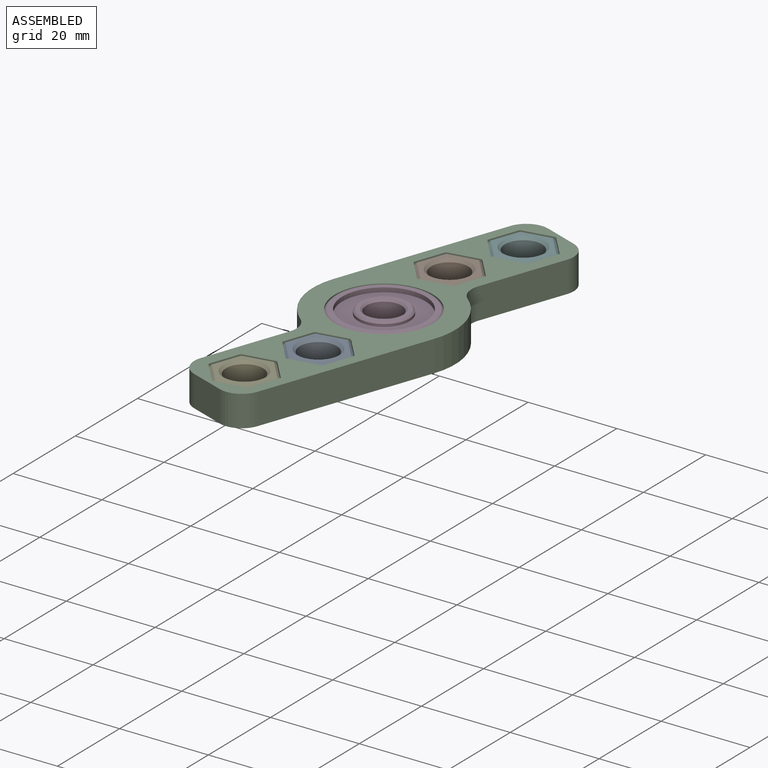
[diagram: assembled view]
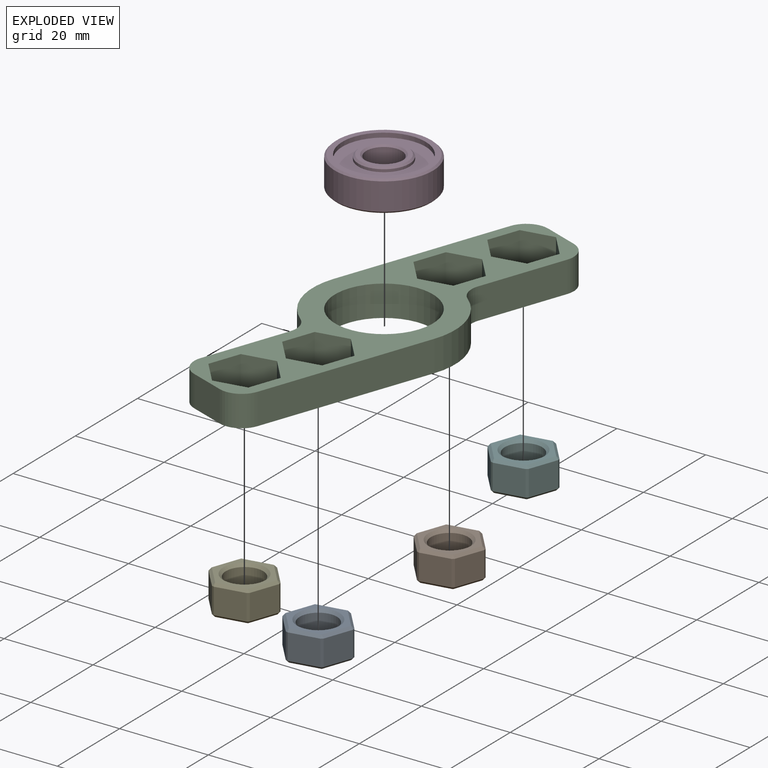
[diagram: exploded view]
GUIDED TOUR — MATED ASSEMBLY (Onshape document e9335b3dddc1cef480485719, AutoMate assembly e9335b3dddc1cef480485719_b660ee361fc7088504fec2f4_681fb0fbd67f3c1faf1fdd3c_default)

This assembly has 6 components, labeled P0..P5 below (a component is one placed occurrence of a part; the same part can appear more than once), held together by 5 mates. A mate is a constraint between two components; its type names the relative motion it leaves free:
  FASTENED — locks the two components together rigidly (no relative motion),
  REVOLUTE — leaves rotation about the listed axis free (a hinge).
Axis/direction vectors are unit vectors and 'through' points are millimeter coordinates, both in the assembly's world frame.

MATES
  1. FASTENED "Fastened 1": P2 <-> P1, direction (-0.942, 0.337, 0.000) through (38.97, 25.53, -22.82) mm
  2. REVOLUTE "Revolute 1": P3 <-> P2, axis (0.000, 0.000, -1.000) through (33.04, 6.46, -22.82) mm
  3. FASTENED "Fastened 2": P5 <-> P2, direction (0.942, -0.337, 0.000) through (44.59, 41.25, -22.82) mm
  4. FASTENED "Fastened 3": P0 <-> P2, direction (-0.942, 0.337, 0.000) through (27.11, -12.61, -22.82) mm
  5. FASTENED "Fastened 4": P4 <-> P2, direction (-0.942, 0.337, 0.000) through (21.49, -28.33, -22.82) mm

ASSEMBLY ORDER
  1. P2 — the base component [order heuristic]
  2. P3 — core [order heuristic]
  3. P5 [order verified]
  4. P4 [order verified]
  5. P1 [order verified]
  6. P0 [order verified]
Order-tag legend:
  [order verified] — this step's position reverses a verified removal order: the component was checked to insert without passing through the ones already placed.
  [order heuristic] — the first 2 components form the assembly's core: parts whose collision-free extraction could not be verified, listed in mate-graph order.

Of the 6 components, 5 carry the full construction recipe — the FeatureScript program that regenerates the part's solid from scratch; the rest are supplied as boundary geometry only.
Each toured component is shown spotlighted twice — in the assembled view, then in the exploded view, where a leader line traces a displaced component back to its assembled socket (saturated green if recipe-attached, orange if geometry-only; every other component desaturated gray) — followed by its recipe or geometry summary and the mates that hold it.
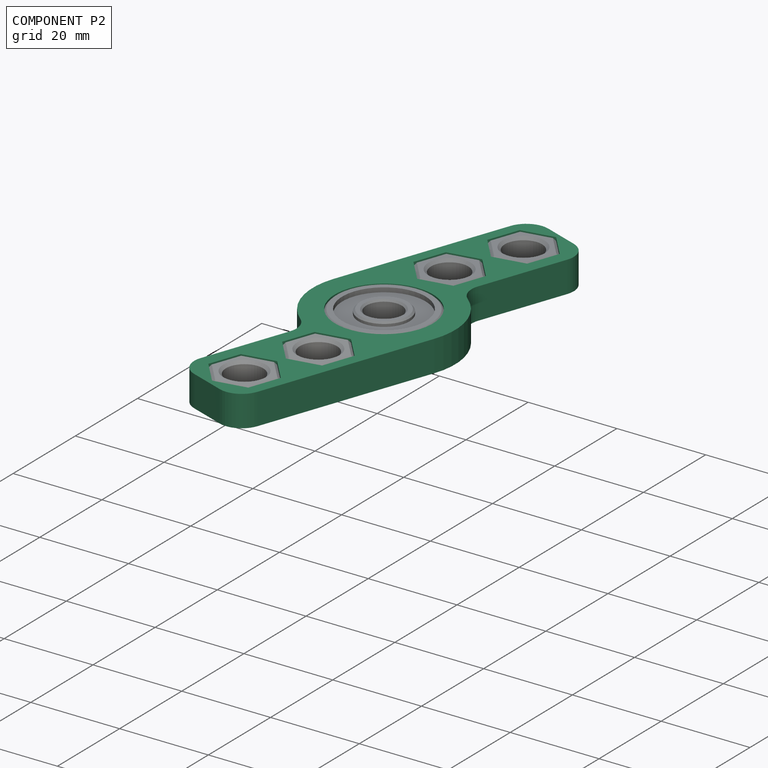
[diagram: component P2 — assembled]
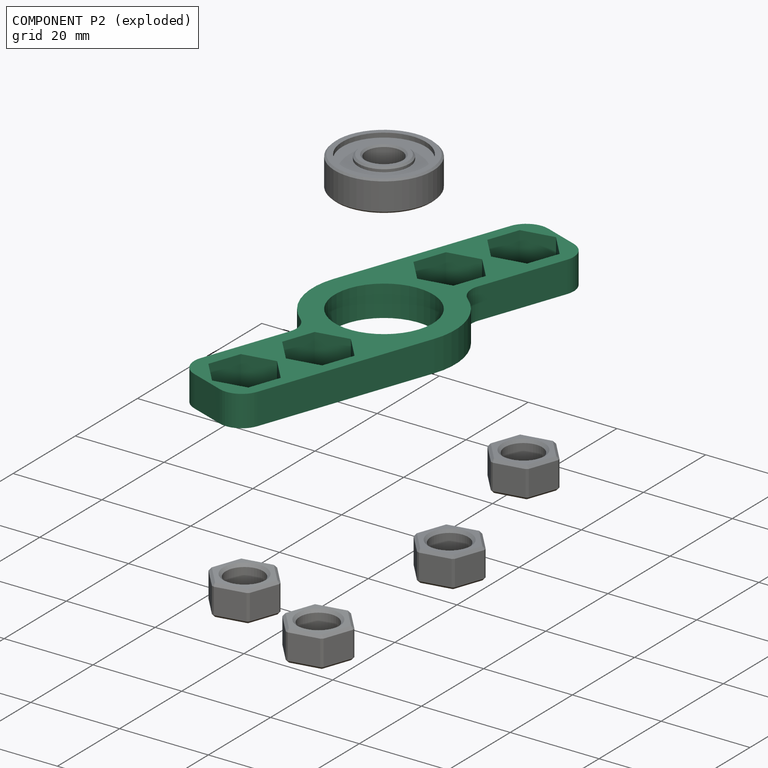
[diagram: component P2 — exploded]
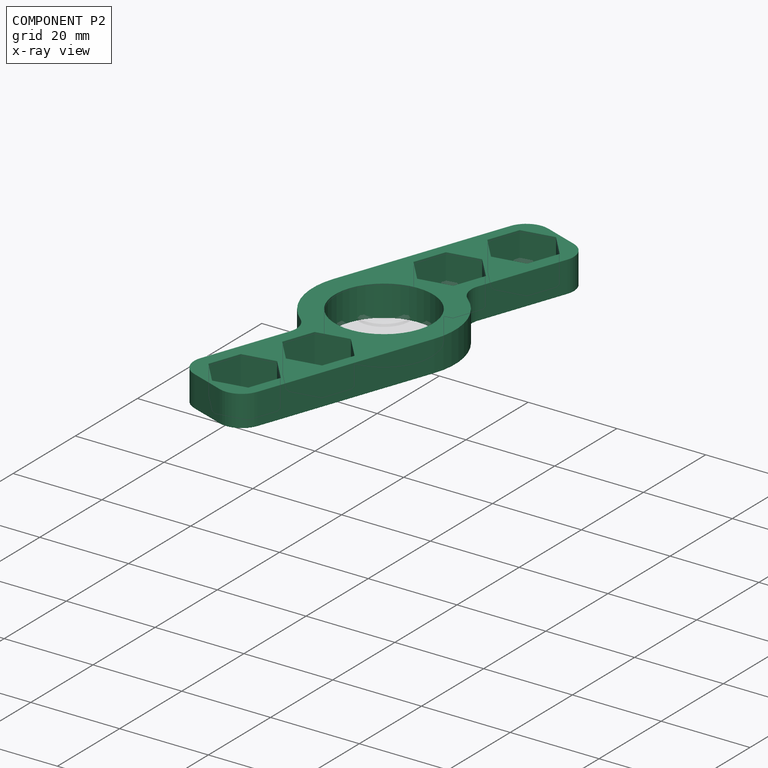
[diagram: component P2 — x-ray view]
COMPONENT P2 — recipe-attached (CADFS 00949858, mesh-verified: the recipe's output STEP matches this component's geometry to below the mesh-comparison resolution (tessellation chordal tolerance ~0.144 mm)).
Held by: FASTENED mate "Fastened 1" to P1; REVOLUTE mate "Revolute 1" to P3; FASTENED mate "Fastened 2" to P5; FASTENED mate "Fastened 3" to P0; FASTENED mate "Fastened 4" to P4.
Construction recipe (FeatureScript — the CAD program that rebuilds this solid; sketch coordinates are in the units given by the * unit suffixes, e.g. mm):

FeatureScript 1511;
import(path : "onshape/std/geometry.fs", version : "1511.0");
import(path : "onshape/std/common.fs", version : "1511.0");
const mm = millimeter;
const VERTEX = EntityType.VERTEX;
const EDGE = EntityType.EDGE;
const FACE = EntityType.FACE;
const BODY = EntityType.BODY;
function v(x, y){return vector(x, y);}
function OD(order){return orderDisambiguation(order);}
function OSD(set){return originalSetDisambiguation(set);}
function TD(topology){return topologyDisambiguation(topology);}
function TDD(query){return trueDependencyDisambiguation(query);}
function sQuery(a, b, c) {return sketchEntityQuery(a, b, c);}

annotation { "Feature Type Name" : "Feature", "Feature Type Description" : "" }
export const myFeature = defineFeature(function(context is Context, id is Id, definition is map)
    precondition{}
    {
        {
            var Q0;
            Q0=qCreatedBy(makeId("Top.planeOp"),FACE);
            var sketch = newSketch(context, id + "F0", { "sketchPlane" : qUnion([Q0])});
            skArc(sketch, "E0", {"start": v(11.05, 0) * mm, "mid": v(0, 11.05) * mm, "end": v(-11.05, 0) * mm});
            skArc(sketch, "E1.0", {"start": v(-8.72, 13.48) * mm, "mid": v(-9.1, 13.22) * mm, "end": v(-9.47, 12.96) * mm});
            skLineSegment(sketch, "E2", {"start": v(-16.05, 0) * mm, "end": v(-16.05, 40) * mm});
            skLineSegment(sketch, "E3", {"start": v(-11.05, 45) * mm, "end": v(-2.96, 45) * mm});
            skPoint(sketch, "E4", {"position": v(-7.2, 36.6) * mm});
            skPoint(sketch, "E4.positionSnap0", {"position": v(-7.2, 44) * mm});
            skCircle(sketch, "E5.cCircle", {"center": v(-7.2, 36.65) * mm, "radius": 7.35 * mm, "construction": true});
            skLineSegment(sketch, "E5.0", {"start": v(-7.2, 44) * mm, "end": v(-0.83, 40.33) * mm});
            skLineSegment(sketch, "E5.1", {"start": v(-0.83, 40.33) * mm, "end": v(-0.83, 32.98) * mm});
            skLineSegment(sketch, "E5.2", {"start": v(-0.83, 32.98) * mm, "end": v(-7.2, 29.3) * mm});
            skLineSegment(sketch, "E5.3", {"start": v(-7.2, 29.3) * mm, "end": v(-13.57, 32.98) * mm});
            skLineSegment(sketch, "E5.4", {"start": v(-13.57, 32.98) * mm, "end": v(-13.57, 40.33) * mm});
            skLineSegment(sketch, "E5.5", {"start": v(-13.57, 40.33) * mm, "end": v(-7.2, 44) * mm});
            skCircle(sketch, "E6.cCircle", {"center": v(-7.2, 19.95) * mm, "radius": 7.35 * mm, "construction": true});
            skLineSegment(sketch, "E6.0", {"start": v(-7.2, 27.3) * mm, "end": v(-0.83, 23.63) * mm});
            skLineSegment(sketch, "E6.1", {"start": v(-0.83, 23.63) * mm, "end": v(-0.83, 16.28) * mm});
            skLineSegment(sketch, "E6.2", {"start": v(-0.83, 16.28) * mm, "end": v(-7.2, 12.6) * mm});
            skLineSegment(sketch, "E6.3", {"start": v(-7.2, 12.6) * mm, "end": v(-13.57, 16.28) * mm});
            skLineSegment(sketch, "E6.4", {"start": v(-13.57, 16.28) * mm, "end": v(-13.57, 23.63) * mm});
            skLineSegment(sketch, "E6.5", {"start": v(-13.57, 23.63) * mm, "end": v(-7.2, 27.3) * mm});
            skPoint(sketch, "E7.visualSharp", {"position": v(2.04, 15.92) * mm});
            skPoint(sketch, "E8.visualSharp", {"position": v(-16.05, 45) * mm});
            skArc(sketch, "E8.filletArc", {"start": v(-11.05, 45) * mm, "mid": v(-14.59, 43.54) * mm, "end": v(-16.05, 40) * mm});
            skPoint(sketch, "E9.visualSharp", {"position": v(3.49, 45) * mm});
            skArc(sketch, "E9.filletArc", {"start": v(2.04, 40) * mm, "mid": v(0.57, 43.54) * mm, "end": v(-2.96, 45) * mm});
            skArc(sketch, "E10", {"start": v(-11.05, 0) * mm, "mid": v(0, -11.05) * mm, "end": v(11.05, 0) * mm});
            skArc(sketch, "E11.0", {"start": v(8.72, -13.48) * mm, "mid": v(9.1, -13.22) * mm, "end": v(9.47, -12.96) * mm});
            skLineSegment(sketch, "E12", {"start": v(16.05, 0) * mm, "end": v(16.05, -40) * mm});
            skLineSegment(sketch, "E13", {"start": v(11.05, -45) * mm, "end": v(2.96, -45) * mm});
            skPoint(sketch, "E14", {"position": v(7.2, -36.65) * mm});
            skPoint(sketch, "E14.positionSnap0", {"position": v(7.2, -44) * mm});
            skCircle(sketch, "E15.cCircle", {"center": v(7.2, -36.65) * mm, "radius": 7.35 * mm, "construction": true});
            skLineSegment(sketch, "E15.0", {"start": v(7.2, -44) * mm, "end": v(0.83, -40.33) * mm});
            skLineSegment(sketch, "E15.1", {"start": v(0.83, -40.33) * mm, "end": v(0.83, -32.98) * mm});
            skLineSegment(sketch, "E15.2", {"start": v(0.83, -32.98) * mm, "end": v(7.2, -29.3) * mm});
            skLineSegment(sketch, "E15.3", {"start": v(7.2, -29.3) * mm, "end": v(13.57, -32.97) * mm});
            skLineSegment(sketch, "E15.4", {"start": v(13.57, -32.97) * mm, "end": v(13.57, -40.33) * mm});
            skLineSegment(sketch, "E15.5", {"start": v(13.57, -40.32) * mm, "end": v(7.2, -44) * mm});
            skCircle(sketch, "E16.cCircle", {"center": v(7.2, -19.95) * mm, "radius": 7.35 * mm, "construction": true});
            skLineSegment(sketch, "E16.0", {"start": v(7.2, -27.3) * mm, "end": v(0.83, -23.63) * mm});
            skLineSegment(sketch, "E16.1", {"start": v(0.83, -23.62) * mm, "end": v(0.83, -16.28) * mm});
            skLineSegment(sketch, "E16.2", {"start": v(0.83, -16.28) * mm, "end": v(7.2, -12.6) * mm});
            skLineSegment(sketch, "E16.3", {"start": v(7.2, -12.6) * mm, "end": v(13.57, -16.28) * mm});
            skLineSegment(sketch, "E16.4", {"start": v(13.57, -16.28) * mm, "end": v(13.57, -23.63) * mm});
            skLineSegment(sketch, "E16.5", {"start": v(13.57, -23.63) * mm, "end": v(7.2, -27.3) * mm});
            skPoint(sketch, "E17.visualSharp", {"position": v(-2.04, -15.92) * mm});
            skPoint(sketch, "E18.visualSharp", {"position": v(16.05, -45) * mm});
            skArc(sketch, "E18.filletArc", {"start": v(11.05, -45) * mm, "mid": v(14.59, -43.54) * mm, "end": v(16.05, -40) * mm});
            skPoint(sketch, "E19.visualSharp", {"position": v(-3.49, -45) * mm});
            skArc(sketch, "E19.filletArc", {"start": v(-2.04, -40) * mm, "mid": v(-0.57, -43.54) * mm, "end": v(2.96, -45) * mm});
            skLineSegment(sketch, "E20", {"start": v(2.04, 40) * mm, "end": v(2.04, 19.84) * mm});
            skLineSegment(sketch, "E21", {"start": v(-2.04, -40) * mm, "end": v(-2.04, -19.84) * mm});
            skArc(sketch, "E22", {"start": v(5.37, 15.13) * mm, "mid": v(13.1, 9.26) * mm, "end": v(16.05, 0) * mm});
            skArc(sketch, "E23", {"start": v(-16.05, 0) * mm, "mid": v(-13.1, -9.26) * mm, "end": v(-5.37, -15.13) * mm});
            skArc(sketch, "E24.filletArc", {"start": v(2.04, 19.84) * mm, "mid": v(2.95, 16.95) * mm, "end": v(5.37, 15.13) * mm});
            skArc(sketch, "E25.filletArc", {"start": v(-2.04, -19.84) * mm, "mid": v(-2.95, -16.95) * mm, "end": v(-5.37, -15.13) * mm});
            skSolve(sketch);
        }
        {
            var Q0;
            Q0=makeQuery(id+"F0.imprint","IMPRINT",FACE,{"disambiguationData":[TD([[makeQuery(id+"F0.imprint","IMPRINT",EDGE,{"derivedFrom":sQuery(id+"F0.wireOp",EDGE,"E0")}),-1.0]])]});
            extrude(context, id + "F1", {"entities" : qUnion([Q0]), "depth" : 7 * mm, "offsetDistance" : 25 * mm});
        }
    });
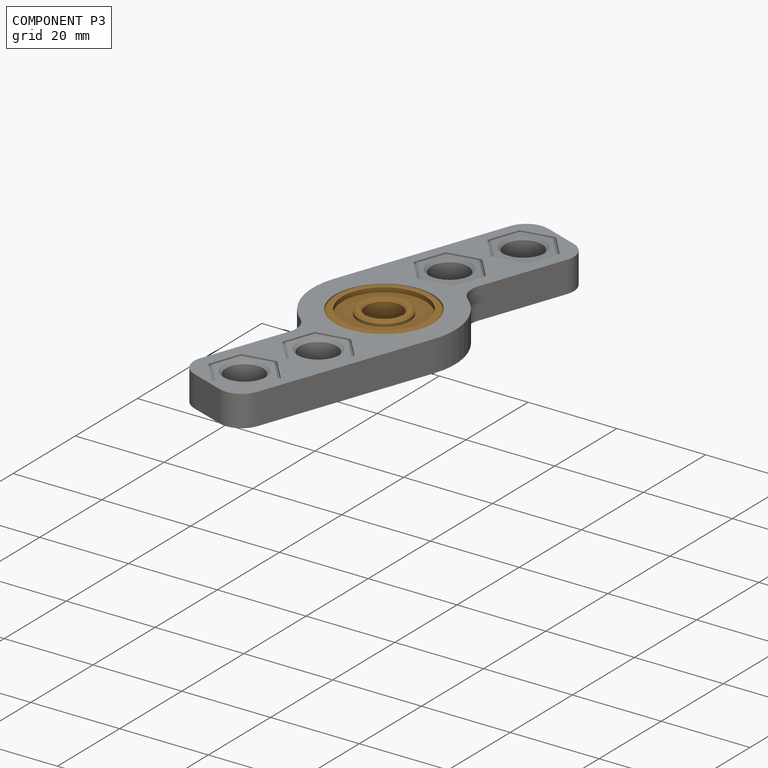
[diagram: component P3 — assembled]
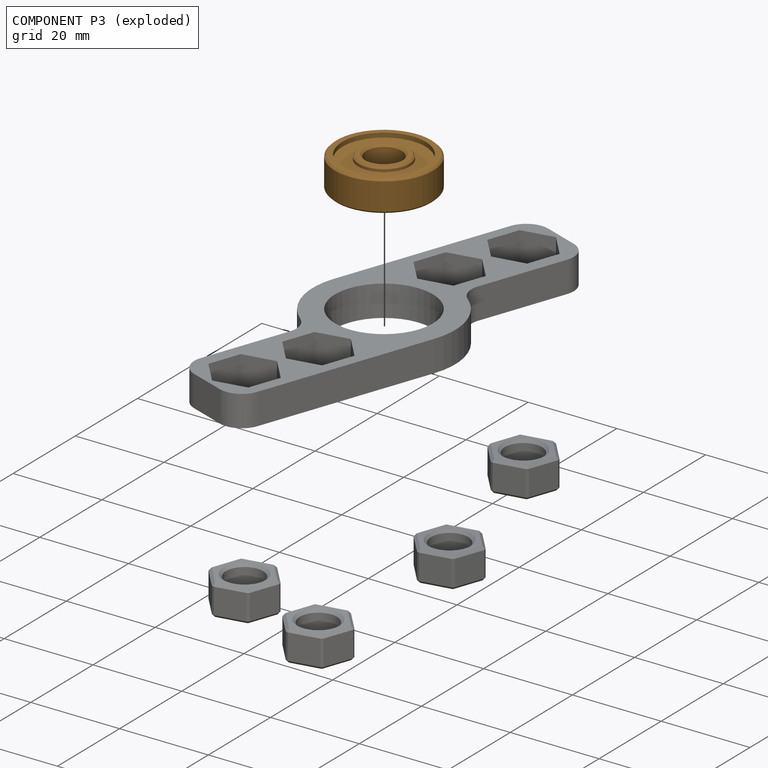
[diagram: component P3 — exploded]
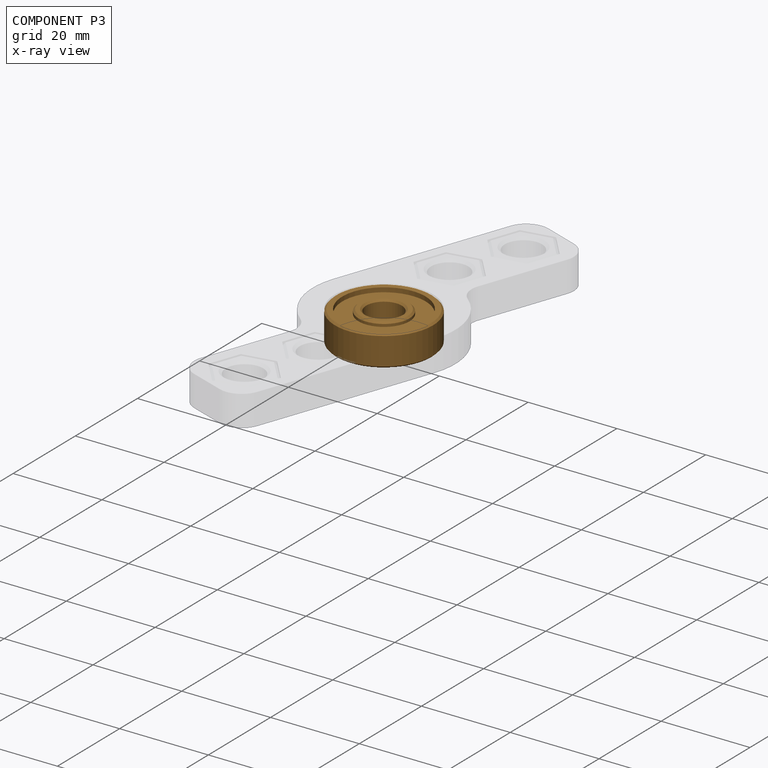
[diagram: component P3 — x-ray view]
COMPONENT P3 — geometry summary (no construction recipe available for this part):
  bounding box: 22.1 x 22.1 x 7.0 mm
  B-rep topology: 1 solid, 18 faces, 60 edges
  volume: 1965 mm^3 (57% of its bounding box)
  symmetry: 2-fold rotationally symmetric about the x axis; 2-fold rotationally symmetric about the y axis; revolution-symmetric about the z axis through its bounding-box center; mirror-symmetric across its x mid-plane, y mid-plane, z mid-plane
Held by: REVOLUTE mate "Revolute 1" to P2.
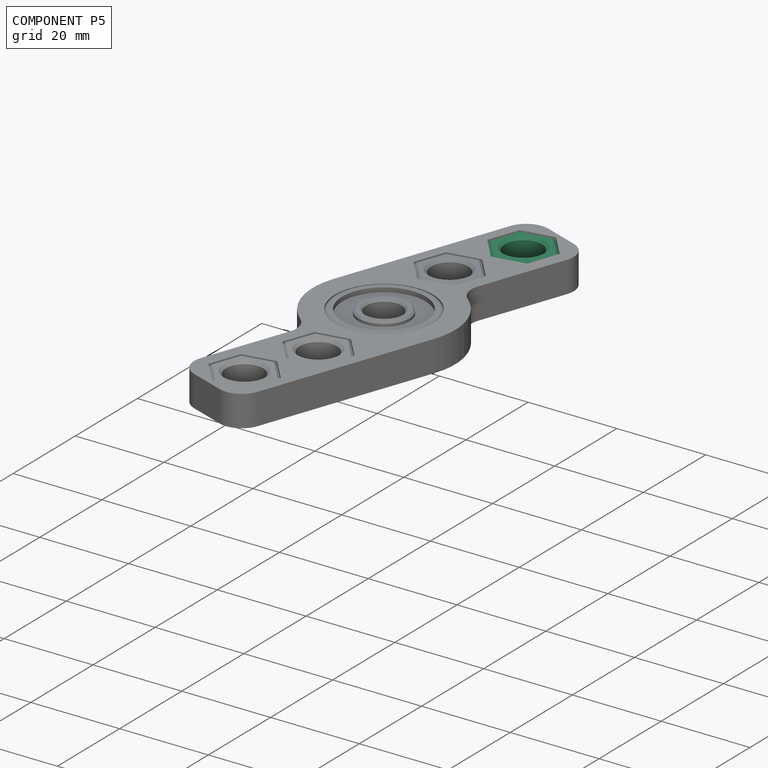
[diagram: component P5 — assembled]
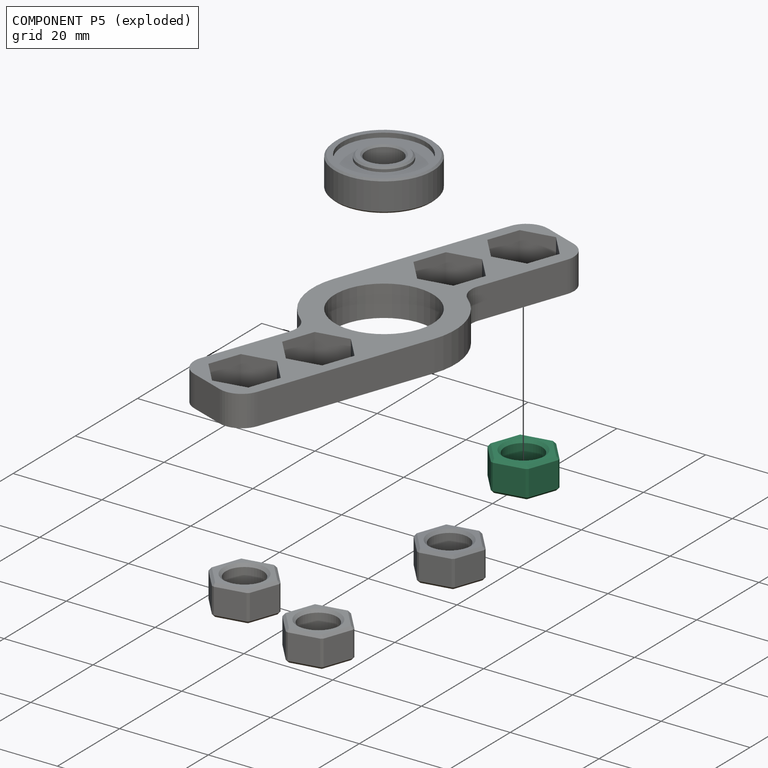
[diagram: component P5 — exploded]
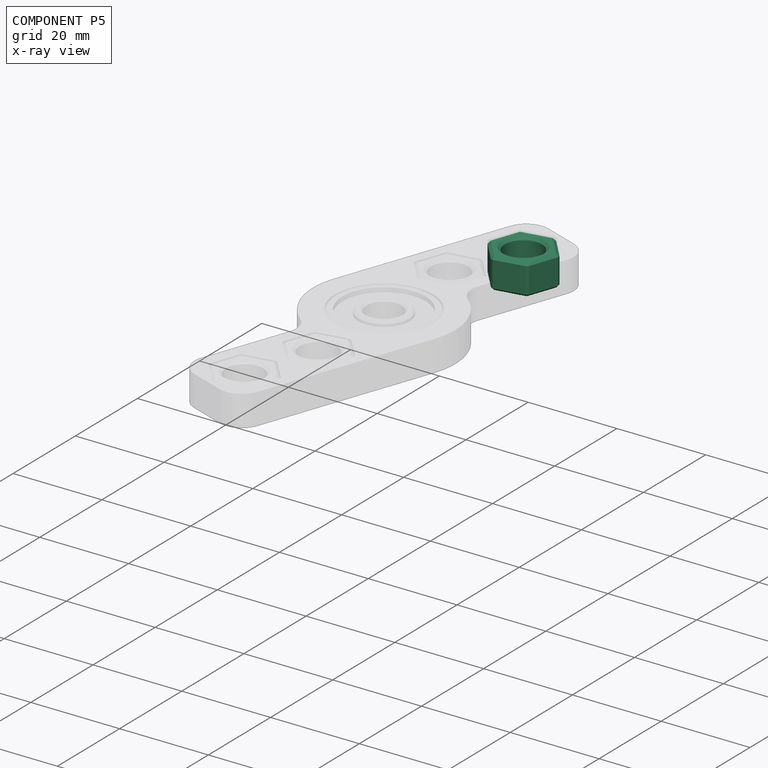
[diagram: component P5 — x-ray view]
COMPONENT P5 — same part as P0 (CADFS 00949860); its construction recipe is shown at P0.
Held by: FASTENED mate "Fastened 2" to P2.
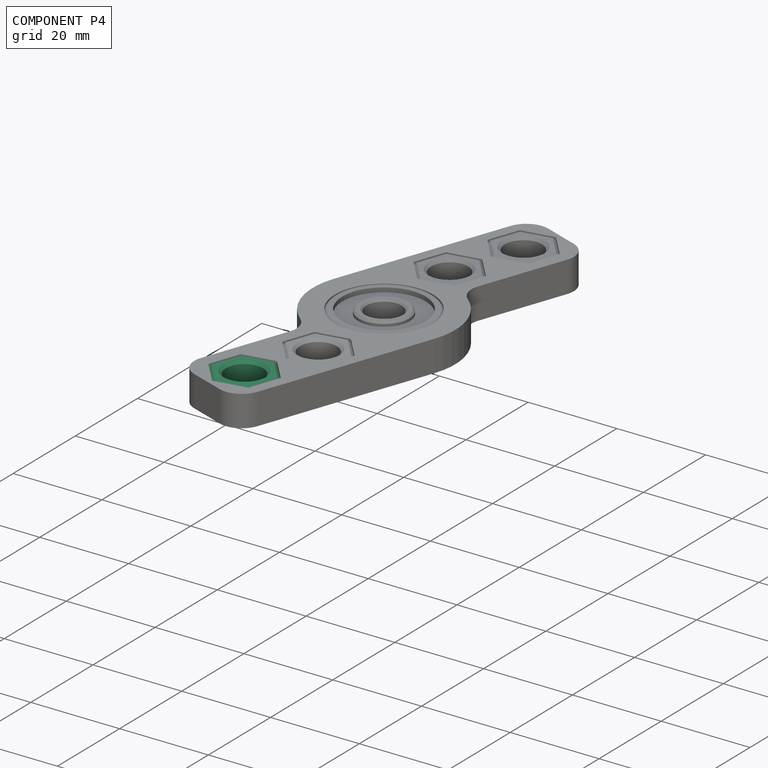
[diagram: component P4 — assembled]
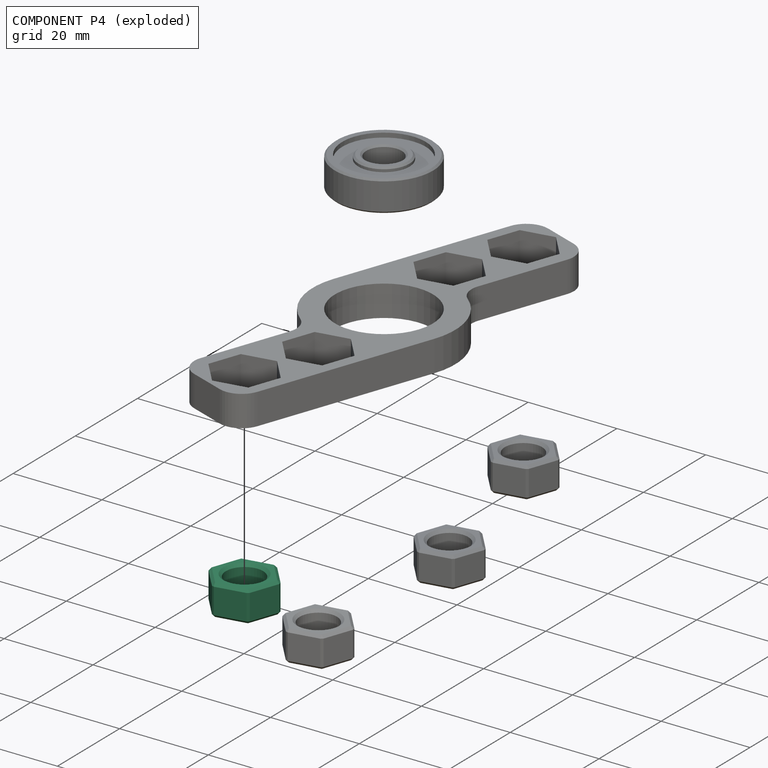
[diagram: component P4 — exploded]
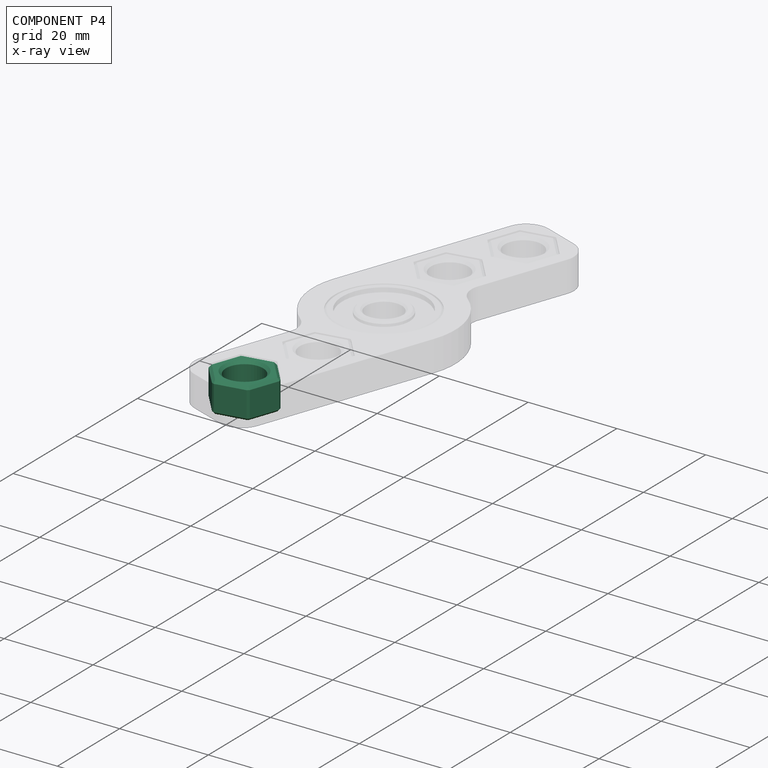
[diagram: component P4 — x-ray view]
COMPONENT P4 — same part as P0 (CADFS 00949860); its construction recipe is shown at P0.
Held by: FASTENED mate "Fastened 4" to P2.
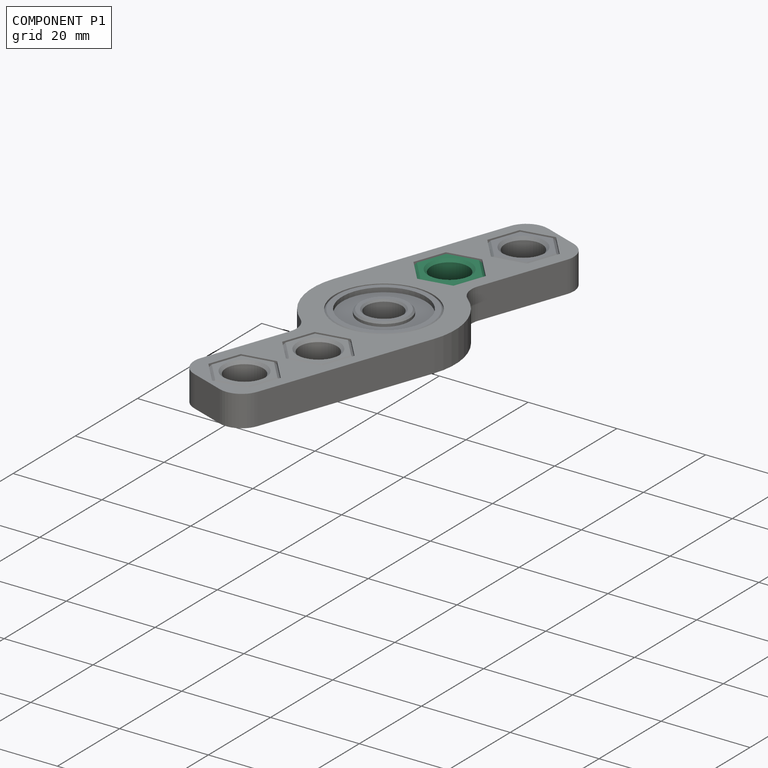
[diagram: component P1 — assembled]
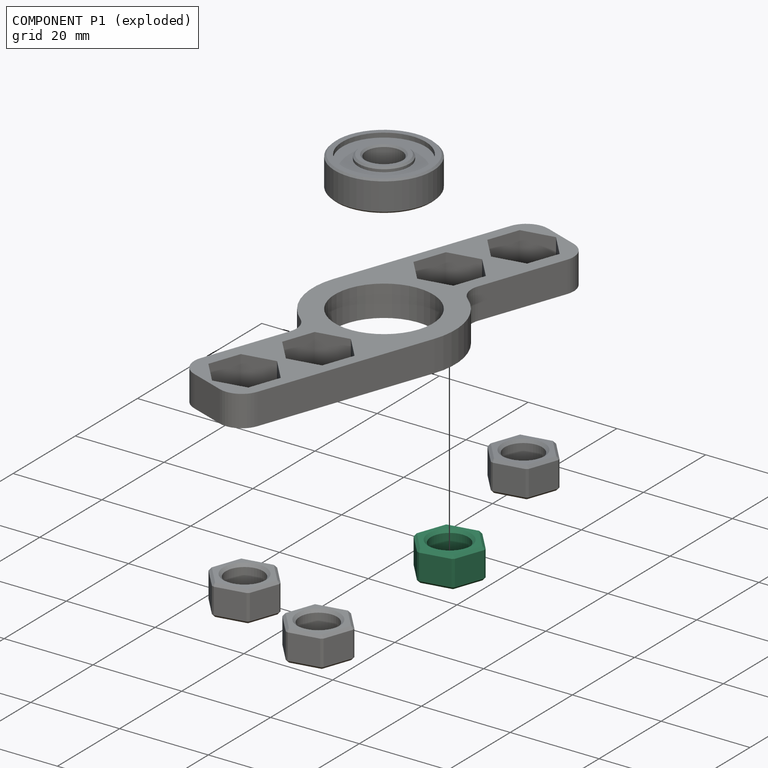
[diagram: component P1 — exploded]
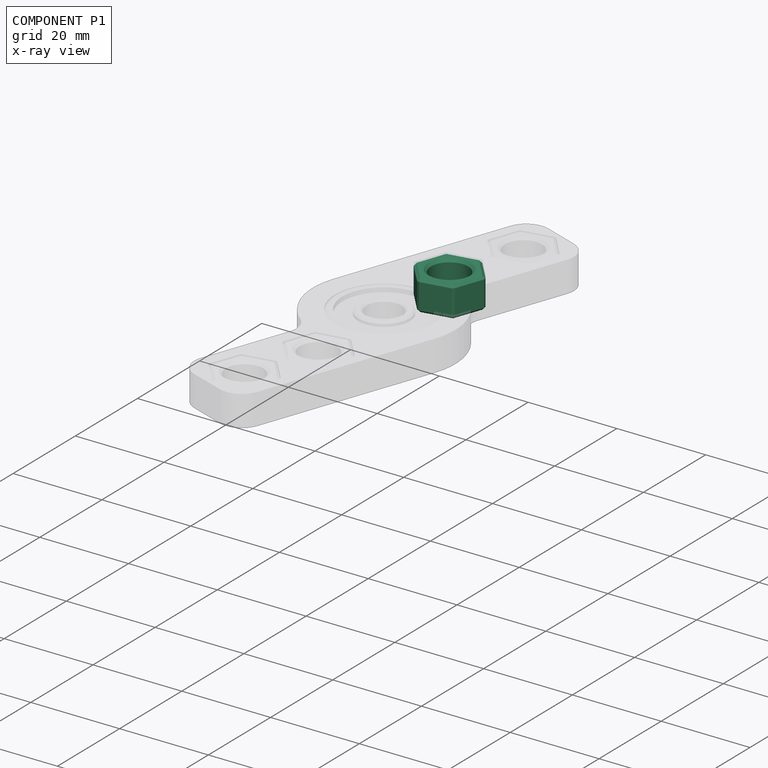
[diagram: component P1 — x-ray view]
COMPONENT P1 — same part as P0 (CADFS 00949860); its construction recipe is shown at P0.
Held by: FASTENED mate "Fastened 1" to P2.
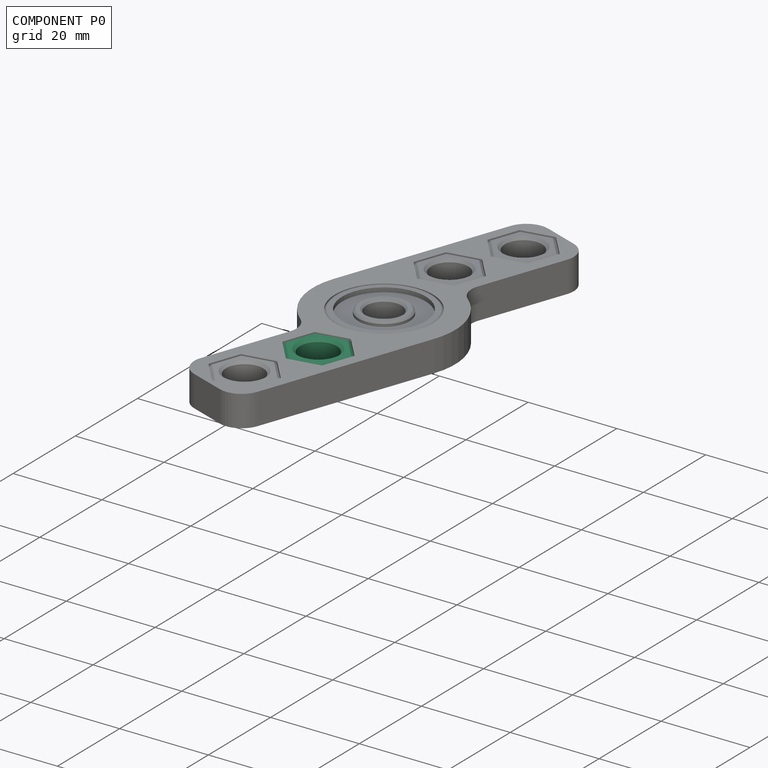
[diagram: component P0 — assembled]
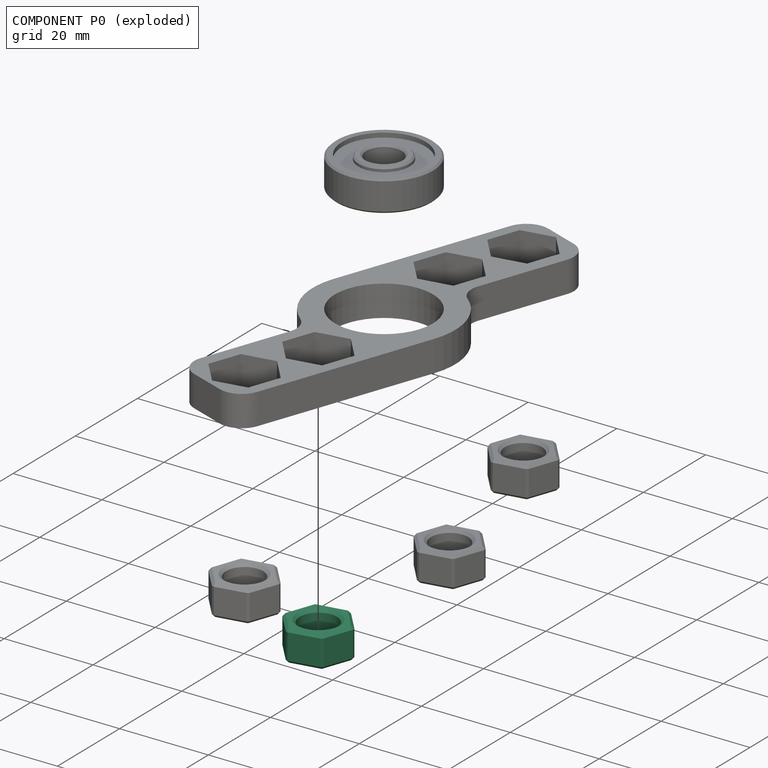
[diagram: component P0 — exploded]
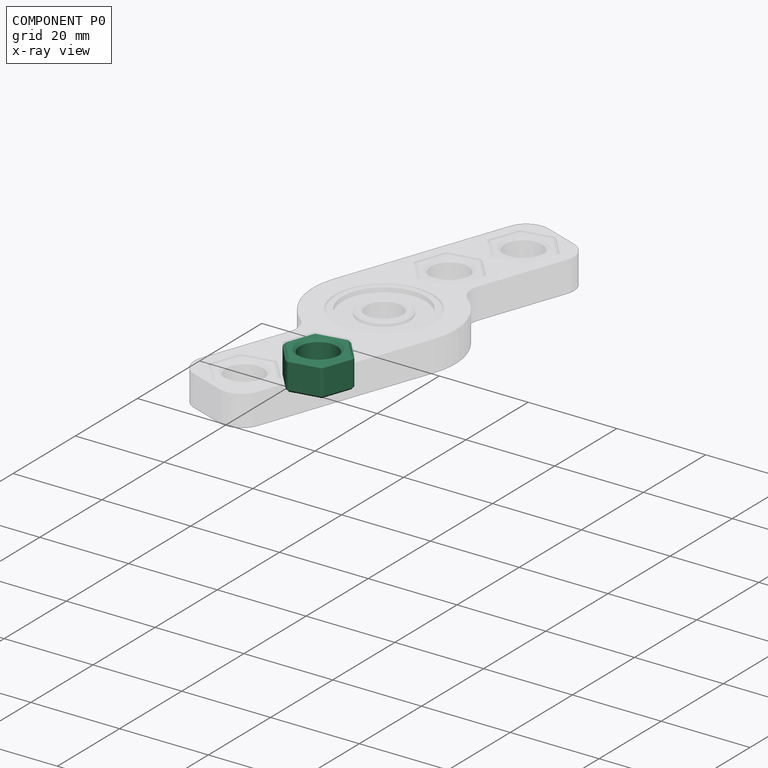
[diagram: component P0 — x-ray view]
COMPONENT P0 — recipe-attached (CADFS 00949860, mesh-verified: the recipe's output STEP matches this component's geometry to below the mesh-comparison resolution (tessellation chordal tolerance ~0.0306 mm)).
Held by: FASTENED mate "Fastened 3" to P2.
Construction recipe (FeatureScript — the CAD program that rebuilds this solid; sketch coordinates are in the units given by the * unit suffixes, e.g. mm):

FeatureScript 1511;
import(path : "onshape/std/geometry.fs", version : "1511.0");
import(path : "onshape/std/common.fs", version : "1511.0");
const mm = millimeter;
const VERTEX = EntityType.VERTEX;
const EDGE = EntityType.EDGE;
const FACE = EntityType.FACE;
const BODY = EntityType.BODY;
function v(x, y){return vector(x, y);}
function OD(order){return orderDisambiguation(order);}
function OSD(set){return originalSetDisambiguation(set);}
function TD(topology){return topologyDisambiguation(topology);}
function TDD(query){return trueDependencyDisambiguation(query);}
function sQuery(a, b, c) {return sketchEntityQuery(a, b, c);}

annotation { "Feature Type Name" : "Feature", "Feature Type Description" : "" }
export const myFeature = defineFeature(function(context is Context, id is Id, definition is map)
    precondition{}
    {
        {
            var Q0;
            Q0=qCreatedBy(makeId("Top.planeOp"),FACE);
            var sketch = newSketch(context, id + "F0", { "sketchPlane" : qUnion([Q0])});
            skCircle(sketch, "E0.cCircle", {"center": v(0, 0) * mm, "radius": 7.35 * mm, "construction": true});
            skLineSegment(sketch, "E0.0", {"start": v(0, -7.35) * mm, "end": v(-6.37, -3.67) * mm});
            skLineSegment(sketch, "E0.1", {"start": v(-6.37, -3.68) * mm, "end": v(-6.37, 3.67) * mm});
            skLineSegment(sketch, "E0.2", {"start": v(-6.37, 3.67) * mm, "end": v(0, 7.35) * mm});
            skLineSegment(sketch, "E0.3", {"start": v(0, 7.35) * mm, "end": v(6.37, 3.68) * mm});
            skLineSegment(sketch, "E0.4", {"start": v(6.37, 3.68) * mm, "end": v(6.37, -3.67) * mm});
            skLineSegment(sketch, "E0.5", {"start": v(6.37, -3.67) * mm, "end": v(0, -7.35) * mm});
            skCircle(sketch, "E1", {"center": v(0, 0) * mm, "radius": 4.2 * mm});
            skSolve(sketch);
        }
        {
            var Q0;
            Q0=makeQuery(id+"F0.imprint","IMPRINT",FACE,{"disambiguationData":[TD([[makeQuery(id+"F0.imprint","IMPRINT",EDGE,{"derivedFrom":sQuery(id+"F0.wireOp",EDGE,"E0.0")}),-1.0]])]});
            extrude(context, id + "F1", {"entities" : qUnion([Q0]), "depth" : 7 * mm, "offsetDistance" : 25 * mm});
        }
        {
            var Q0;
            Q0=makeQuery(id+"F1.opExtrude","CAP_EDGE",EDGE,{"disambiguationData":[OSD([sQuery(id+"F0.wireOp",EDGE,"E0.4")])],"isStart":true});
            var Q1;
            Q1=makeQuery(id+"F1.opExtrude","CAP_EDGE",EDGE,{"disambiguationData":[OSD([sQuery(id+"F0.wireOp",EDGE,"E0.4")])],"isStart":false});
            var Q2;
            Q2=makeQuery(id+"F1.opExtrude","SWEPT_EDGE",EDGE,{"disambiguationData":[OSD([sQuery(id+"F0.wireOp",EDGE,"E0.0"),sQuery(id+"F0.wireOp",EDGE,"E0.5")])]});
            var Q3;
            Q3=makeQuery(id+"F1.opExtrude","SWEPT_EDGE",EDGE,{"disambiguationData":[OSD([sQuery(id+"F0.wireOp",EDGE,"E0.0"),sQuery(id+"F0.wireOp",EDGE,"E0.1")])]});
            var Q4;
            Q4=makeQuery(id+"F1.opExtrude","SWEPT_EDGE",EDGE,{"disambiguationData":[OSD([sQuery(id+"F0.wireOp",EDGE,"E0.3"),sQuery(id+"F0.wireOp",EDGE,"E0.4")])]});
            var Q5;
            Q5=makeQuery(id+"F1.opExtrude","SWEPT_EDGE",EDGE,{"disambiguationData":[OSD([sQuery(id+"F0.wireOp",EDGE,"E0.4"),sQuery(id+"F0.wireOp",EDGE,"E0.5")])]});
            var Q6;
            Q6=makeQuery(id+"F1.opExtrude","CAP_EDGE",EDGE,{"disambiguationData":[OSD([sQuery(id+"F0.wireOp",EDGE,"E0.1")])],"isStart":false});
            var Q7;
            Q7=makeQuery(id+"F1.opExtrude","CAP_EDGE",EDGE,{"disambiguationData":[OSD([sQuery(id+"F0.wireOp",EDGE,"E0.2")])],"isStart":false});
            var Q8;
            Q8=makeQuery(id+"F1.opExtrude","CAP_EDGE",EDGE,{"disambiguationData":[OSD([sQuery(id+"F0.wireOp",EDGE,"E0.5")])],"isStart":true});
            var Q9;
            Q9=makeQuery(id+"F1.opExtrude","CAP_EDGE",EDGE,{"disambiguationData":[OSD([sQuery(id+"F0.wireOp",EDGE,"E0.5")])],"isStart":false});
            var Q10;
            Q10=makeQuery(id+"F1.opExtrude","CAP_EDGE",EDGE,{"disambiguationData":[OSD([sQuery(id+"F0.wireOp",EDGE,"E1")])],"isStart":true});
            var Q11;
            Q11=makeQuery(id+"F1.opExtrude","CAP_EDGE",EDGE,{"disambiguationData":[OSD([sQuery(id+"F0.wireOp",EDGE,"E1")])],"isStart":false});
            var Q12;
            Q12=makeQuery(id+"F1.opExtrude","CAP_EDGE",EDGE,{"disambiguationData":[OSD([sQuery(id+"F0.wireOp",EDGE,"E0.3")])],"isStart":false});
            var Q13;
            Q13=makeQuery(id+"F1.opExtrude","SWEPT_EDGE",EDGE,{"disambiguationData":[OSD([sQuery(id+"F0.wireOp",EDGE,"E0.1"),sQuery(id+"F0.wireOp",EDGE,"E0.2")])]});
            var Q14;
            Q14=makeQuery(id+"F1.opExtrude","SWEPT_EDGE",EDGE,{"disambiguationData":[OSD([sQuery(id+"F0.wireOp",EDGE,"E0.2"),sQuery(id+"F0.wireOp",EDGE,"E0.3")])]});
            var Q15;
            Q15=makeQuery(id+"F1.opExtrude","CAP_EDGE",EDGE,{"disambiguationData":[OSD([sQuery(id+"F0.wireOp",EDGE,"E0.0")])],"isStart":true});
            var Q16;
            Q16=makeQuery(id+"F1.opExtrude","CAP_EDGE",EDGE,{"disambiguationData":[OSD([sQuery(id+"F0.wireOp",EDGE,"E0.0")])],"isStart":false});
            var Q17;
            Q17=makeQuery(id+"F1.opExtrude","CAP_EDGE",EDGE,{"disambiguationData":[OSD([sQuery(id+"F0.wireOp",EDGE,"E0.1")])],"isStart":true});
            var Q18;
            Q18=makeQuery(id+"F1.opExtrude","CAP_EDGE",EDGE,{"disambiguationData":[OSD([sQuery(id+"F0.wireOp",EDGE,"E0.2")])],"isStart":true});
            var Q19;
            Q19=makeQuery(id+"F1.opExtrude","CAP_EDGE",EDGE,{"disambiguationData":[OSD([sQuery(id+"F0.wireOp",EDGE,"E0.3")])],"isStart":true});
            chamfer(context, id + "F2", {"entities" : qUnion([Q0, Q1, Q2, Q3, Q4, Q5, Q6, Q7, Q8, Q9, Q10, Q11, Q12, Q13, Q14, Q15, Q16, Q17, Q18, Q19]), "width" : .6 * mm, "tangentPropagation" : true});
        }
    });
PROVENANCE & LICENSES
Assembly (occurrences, transforms, mates, per-part STEP geometry): AutoMate dataset, Zenodo record 7776208, CC0.
Construction recipes: CADFS (HuggingFace VladPyatov/CADFS, CC-BY-4.0, layered over the ABC dataset), FeatureScript reconstruction programs keyed by ABC model id.
Join: ABC meta listings map ABC model id -> Onshape documentId; within a shared document, parts are matched by geometric signature (bounding-box dims + volume at 0.1% relative tolerance, exact B-rep face/solid counts).
Verification: 5 of this assembly's 6 components carry a recipe attachment, and every attachment is mesh-verified: the CADFS STEP and the AutoMate member STEP were compared as meshes in their shared local frame (symmetric sampled-point-to-mesh distance); worst across the 5 attachments: below the mesh-comparison resolution (tessellation chordal tolerance ~0.144 mm) on a 96 mm part.
Renders: orthographic iso camera (az 35 / el 25); the floor grid conveys scale (grid pitch printed in each image; no ruler). In the exploded view each component is displaced by its stored offset vector: the offsets alone carry the explosion direction (mate normal/axis signs are not orientation cues and do not encode it), and separation distances are assigned per mate-chain, not proportionally to assembly-order depth.
